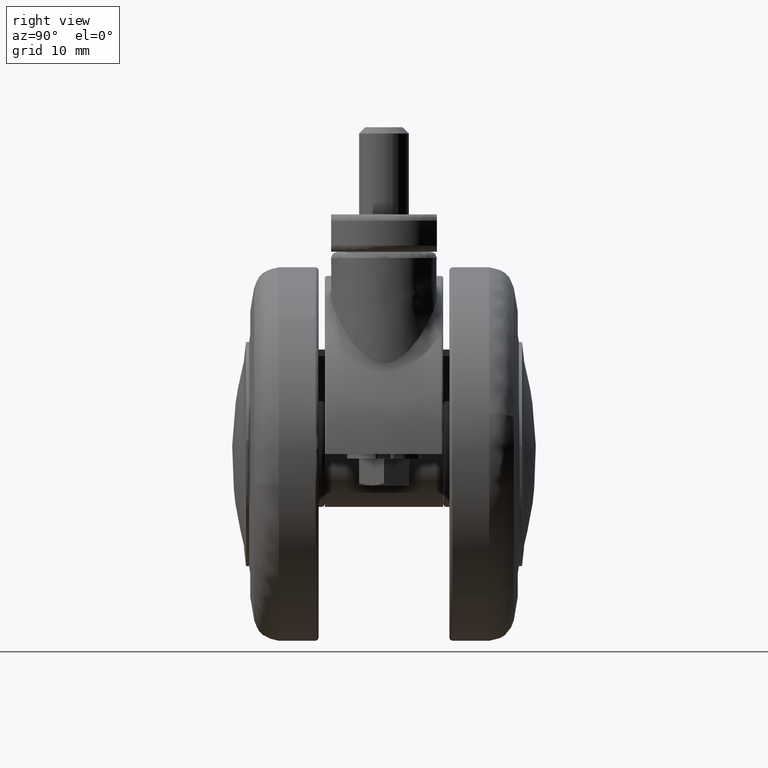
[diagram: clean part render]
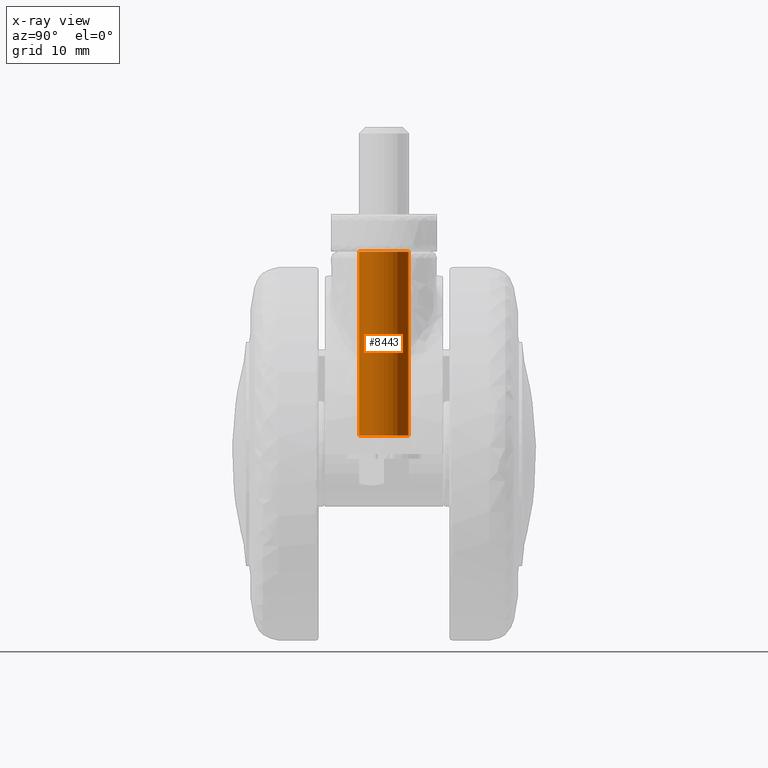
[diagram: x-ray — body ghosted, one internal face saturated and labeled with its STEP entity id]
A machine part, right view, then the same camera in x-ray: the body is ghosted and one INTERNAL B-rep face — a face not visible from any outside direction — is saturated and labeled: STEP entity #8443.
In plain terms, the highlighted face is a freeform B-spline surface patch.
Its self-contained STEP definition (entity closure, byte-faithful):
#8341=CARTESIAN_POINT('',(16.527863061372969,3.972038105454666,33.238750000000003));
#8342=CARTESIAN_POINT('',(16.641541085448090,3.985550461794422,33.238749999999996));
#8343=CARTESIAN_POINT('',(16.755805841860571,3.992539193687467,33.238750000000003));
#8344=CARTESIAN_POINT('',(20.748345035548041,4.236733351826894,33.238750000000003));
#8345=CARTESIAN_POINT('',(20.992539193687470,0.244194158139428,33.238750000000003));
#8346=CARTESIAN_POINT('',(21.236733351826899,-3.748345035548039,33.238750000000003));
#8347=CARTESIAN_POINT('',(17.244194158139429,-3.992539193687467,33.238750000000003));
#8348=CARTESIAN_POINT('',(16.527863061372969,3.972038105454666,2.192781249999996));
#8349=CARTESIAN_POINT('',(16.641541085448090,3.985550461794422,2.192781249999996));
#8350=CARTESIAN_POINT('',(16.755805841860571,3.992539193687467,2.192781249999996));
#8351=CARTESIAN_POINT('',(20.748345035548041,4.236733351826894,2.192781249999997));
#8352=CARTESIAN_POINT('',(20.992539193687470,0.244194158139428,2.192781249999996));
#8353=CARTESIAN_POINT('',(21.236733351826899,-3.748345035548039,2.192781249999997));
#8354=CARTESIAN_POINT('',(17.244194158139429,-3.992539193687467,2.192781249999996));
#8362=(BOUNDED_SURFACE()B_SPLINE_SURFACE(2,1,((#8341,#8348),(#8342,#8349),(#8343,#8350),(#8344,#8351),(#8345,#8352),(#8346,#8353),(#8347,#8354)),.UNSPECIFIED.,.F.,.F.,.U.)B_SPLINE_SURFACE_WITH_KNOTS((3,2,2,3),(2,2),(0.0,0.265096679918781,6.892513677888305,13.519930675857831),(0.0,31.045968750000011),.UNSPECIFIED.)GEOMETRIC_REPRESENTATION_ITEM()RATIONAL_B_SPLINE_SURFACE(((0.977505800795127,0.977505800795127),(0.988284271247462,0.988284271247462),(1.0,1.0),(0.707106781186548,0.707106781186548),(1.0,1.0),(0.707106781186548,0.707106781186548),(1.0,1.0)))REPRESENTATION_ITEM('')SURFACE());
#8363=CARTESIAN_POINT('',(16.527863061318339,3.972038105448172,32.500000000000000));
#8364=VERTEX_POINT('',#8363);
#8365=CARTESIAN_POINT('',(21.0,0.0,32.500000000000000));
#8366=VERTEX_POINT('',#8365);
#8367=CARTESIAN_POINT('',(16.527863061318339,3.972038105448172,32.500000000000000));
#8368=CARTESIAN_POINT('',(16.763103521337165,4.0,32.500000000000000));
#8369=CARTESIAN_POINT('',(17.0,4.0,32.500000000000000));
#8370=CARTESIAN_POINT('',(21.000000000000004,4.000000000000000,32.500000000000007));
#8371=CARTESIAN_POINT('',(21.0,0.0,32.500000000000000));
#8379=(BOUNDED_CURVE()B_SPLINE_CURVE(2,(#8367,#8368,#8369,#8370,#8371),.UNSPECIFIED.,.F.,.U.)B_SPLINE_CURVE_WITH_KNOTS((3,2,3),(0.729562473510996,0.750000000000000,1.0),.UNSPECIFIED.)CURVE()GEOMETRIC_REPRESENTATION_ITEM()RATIONAL_B_SPLINE_CURVE((0.956026754178775,0.976055948328202,1.0,0.707106781186548,1.0))REPRESENTATION_ITEM(''));
#8380=EDGE_CURVE('',#8364,#8366,#8379,.T.);
#8381=ORIENTED_EDGE('',*,*,#8380,.T.);
#8382=CARTESIAN_POINT('',(17.244194158359321,-3.992539193674018,32.500000000000000));
#8383=VERTEX_POINT('',#8382);
#8384=CARTESIAN_POINT('',(21.0,0.0,32.500000000000000));
#8385=CARTESIAN_POINT('',(21.0,-3.762824267207528,32.500000000000007));
#8386=CARTESIAN_POINT('',(17.244194158359321,-3.992539193674018,32.500000000000000));
#8394=(BOUNDED_CURVE()B_SPLINE_CURVE(2,(#8384,#8385,#8386),.UNSPECIFIED.,.F.,.U.)B_SPLINE_CURVE_WITH_KNOTS((3,3),(0.0,0.239332962222962),.UNSPECIFIED.)CURVE()GEOMETRIC_REPRESENTATION_ITEM()RATIONAL_B_SPLINE_CURVE((1.0,0.719603993305433,0.976072041632468))REPRESENTATION_ITEM(''));
#8395=EDGE_CURVE('',#8366,#8383,#8394,.T.);
#8396=ORIENTED_EDGE('',*,*,#8395,.T.);
#8397=CARTESIAN_POINT('',(17.244194158359321,-3.992539193674018,2.950000000000000));
#8398=VERTEX_POINT('',#8397);
#8399=CARTESIAN_POINT('',(17.244194158359321,-3.992539193674018,32.500000000000000));
#8400=CARTESIAN_POINT('',(17.244194158359321,-3.992539193674018,2.950000000000000));
#8401=QUASI_UNIFORM_CURVE('',1,(#8399,#8400),.UNSPECIFIED.,.F.,.U.);
#8402=EDGE_CURVE('',#8383,#8398,#8401,.T.);
#8403=ORIENTED_EDGE('',*,*,#8402,.T.);
#8404=CARTESIAN_POINT('',(21.0,0.0,2.950000000000000));
#8405=VERTEX_POINT('',#8404);
#8406=CARTESIAN_POINT('',(21.0,0.0,2.950000000000000));
#8407=CARTESIAN_POINT('',(21.000000000000004,-3.762824267207531,2.950000000000000));
#8408=CARTESIAN_POINT('',(17.244194158359317,-3.992539193674018,2.950000000000000));
#8416=(BOUNDED_CURVE()B_SPLINE_CURVE(2,(#8406,#8407,#8408),.UNSPECIFIED.,.F.,.U.)B_SPLINE_CURVE_WITH_KNOTS((3,3),(0.500000000000000,0.739332962222962),.UNSPECIFIED.)CURVE()GEOMETRIC_REPRESENTATION_ITEM()RATIONAL_B_SPLINE_CURVE((1.0,0.719603993305433,0.976072041632468))REPRESENTATION_ITEM(''));
#8417=EDGE_CURVE('',#8405,#8398,#8416,.T.);
#8418=ORIENTED_EDGE('',*,*,#8417,.F.);
#8419=CARTESIAN_POINT('',(16.527863061318339,3.972038105448172,2.950000000000000));
#8420=VERTEX_POINT('',#8419);
#8421=CARTESIAN_POINT('',(16.527863061318342,3.972038105448172,2.950000000000000));
#8422=CARTESIAN_POINT('',(16.763103521337154,4.000000000000001,2.950000000000000));
#8423=CARTESIAN_POINT('',(17.0,4.0,2.950000000000000));
#8424=CARTESIAN_POINT('',(21.000000000000004,4.000000000000000,2.950000000000000));
#8425=CARTESIAN_POINT('',(21.0,0.0,2.950000000000000));
#8433=(BOUNDED_CURVE()B_SPLINE_CURVE(2,(#8421,#8422,#8423,#8424,#8425),.UNSPECIFIED.,.F.,.U.)B_SPLINE_CURVE_WITH_KNOTS((3,2,3),(0.229562473510996,0.250000000000000,0.500000000000000),.UNSPECIFIED.)CURVE()GEOMETRIC_REPRESENTATION_ITEM()RATIONAL_B_SPLINE_CURVE((0.956026754178775,0.976055948328201,1.0,0.707106781186548,1.0))REPRESENTATION_ITEM(''));
#8434=EDGE_CURVE('',#8420,#8405,#8433,.T.);
#8435=ORIENTED_EDGE('',*,*,#8434,.F.);
#8436=CARTESIAN_POINT('',(16.527863061318339,3.972038105448172,32.500000000000000));
#8437=CARTESIAN_POINT('',(16.527863061318339,3.972038105448172,2.950000000000000));
#8438=QUASI_UNIFORM_CURVE('',1,(#8436,#8437),.UNSPECIFIED.,.F.,.U.);
#8439=EDGE_CURVE('',#8364,#8420,#8438,.T.);
#8440=ORIENTED_EDGE('',*,*,#8439,.F.);
#8441=EDGE_LOOP('',(#8381,#8396,#8403,#8418,#8435,#8440));
#8442=FACE_OUTER_BOUND('',#8441,.T.);
#8443=ADVANCED_FACE('',(#8442),#8362,.T.);